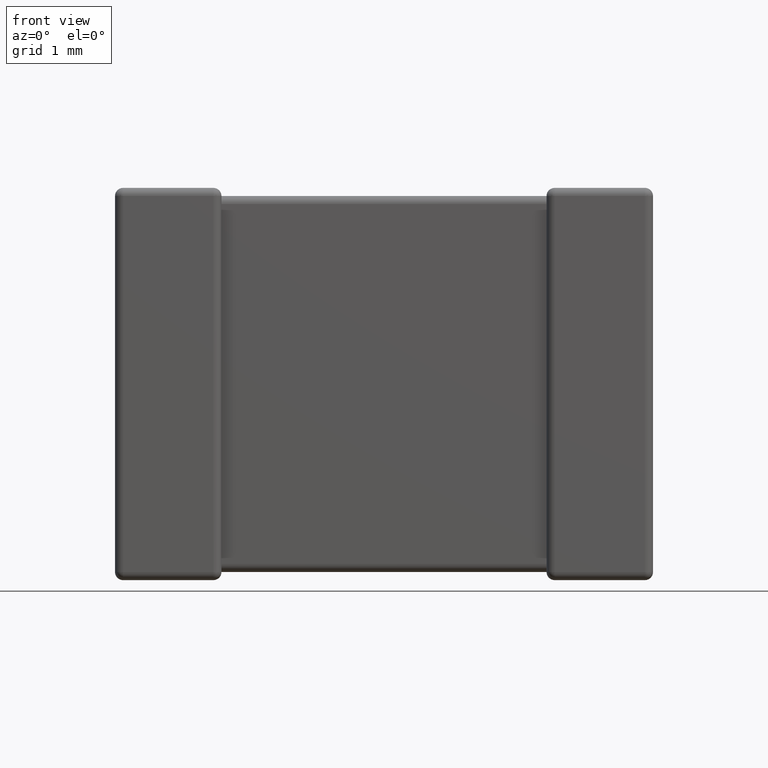
[diagram: clean part render]
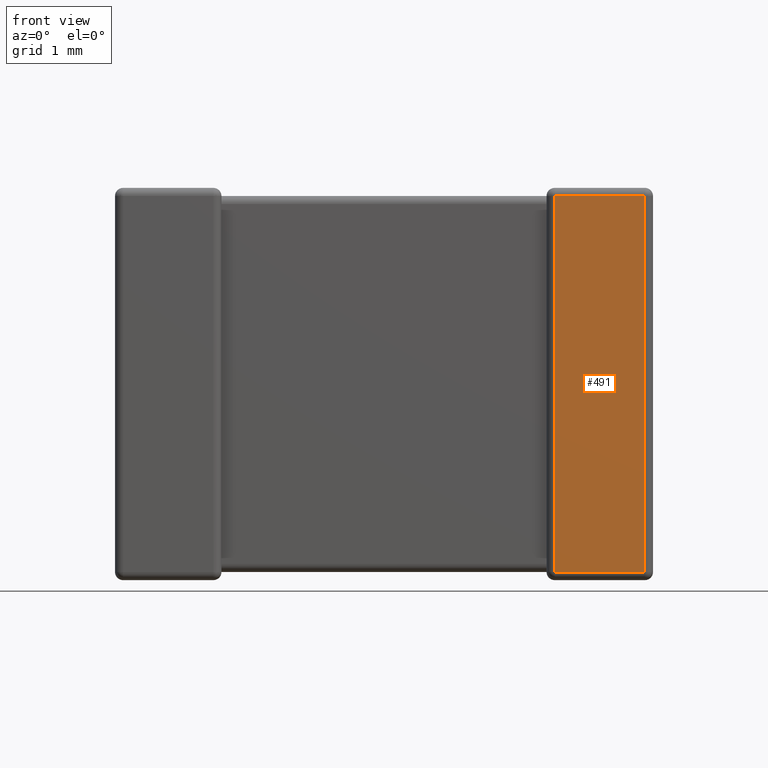
[diagram: same view with one face highlighted and labeled with its STEP entity id]
A machine part, front view. The second image highlights one B-rep face of the part: STEP entity #491.
In plain terms, the highlighted planar face has unit normal (-0, 1, 0).
Its self-contained STEP definition (entity closure, byte-faithful):
#154 = VECTOR ( 'NONE', #3410, 1000.000000000000000 ) ;
#443 = CARTESIAN_POINT ( 'NONE',  ( 3.922799999999999621, 0.000000000000000000, -0.07280000000000000360 ) ) ;
#491 = ADVANCED_FACE ( 'NONE', ( #4095 ), #2328, .F. ) ;
#596 = CARTESIAN_POINT ( 'NONE',  ( 4.727199999999999847, 0.000000000000000000, -3.427200000000000024 ) ) ;
#881 = ORIENTED_EDGE ( 'NONE', *, *, #2938, .T. ) ;
#1214 = CARTESIAN_POINT ( 'NONE',  ( 4.727199999999999847, 0.000000000000000000, -0.07280000000000000360 ) ) ;
#1438 = VECTOR ( 'NONE', #4347, 1000.000000000000000 ) ;
#1847 = LINE ( 'NONE', #2202, #3058 ) ;
#1907 = DIRECTION ( 'NONE',  ( -0.000000000000000000, -0.000000000000000000, 1.000000000000000000 ) ) ;
#1916 = DIRECTION ( 'NONE',  ( 0.000000000000000000, -0.000000000000000000, 1.000000000000000000 ) ) ;
#2037 = VERTEX_POINT ( 'NONE', #2409 ) ;
#2082 = VECTOR ( 'NONE', #1907, 1000.000000000000000 ) ;
#2200 = ORIENTED_EDGE ( 'NONE', *, *, #4464, .T. ) ;
#2202 = CARTESIAN_POINT ( 'NONE',  ( 4.799999999999999822, 0.000000000000000000, -3.427200000000000024 ) ) ;
#2328 = PLANE ( 'NONE',  #4193 ) ;
#2409 = CARTESIAN_POINT ( 'NONE',  ( 3.922799999999999621, 0.000000000000000000, -3.427200000000000024 ) ) ;
#2473 = EDGE_LOOP ( 'NONE', ( #3890, #881, #3039, #2200 ) ) ;
#2610 = CARTESIAN_POINT ( 'NONE',  ( 4.799999999999999822, 0.000000000000000000, 0.000000000000000000 ) ) ;
#2649 = DIRECTION ( 'NONE',  ( -0.000000000000000000, 1.000000000000000000, 0.000000000000000000 ) ) ;
#2697 = LINE ( 'NONE', #3678, #2082 ) ;
#2796 = VERTEX_POINT ( 'NONE', #1214 ) ;
#2938 = EDGE_CURVE ( 'NONE', #3613, #2037, #3955, .T. ) ;
#2982 = CARTESIAN_POINT ( 'NONE',  ( 4.799999999999999822, 0.000000000000000000, -0.07280000000000000360 ) ) ;
#3039 = ORIENTED_EDGE ( 'NONE', *, *, #4014, .T. ) ;
#3058 = VECTOR ( 'NONE', #3269, 1000.000000000000000 ) ;
#3269 = DIRECTION ( 'NONE',  ( 1.000000000000000000, 0.000000000000000000, -0.000000000000000000 ) ) ;
#3311 = LINE ( 'NONE', #2982, #154 ) ;
#3410 = DIRECTION ( 'NONE',  ( -1.000000000000000000, 0.000000000000000000, 0.000000000000000000 ) ) ;
#3602 = CARTESIAN_POINT ( 'NONE',  ( 3.922799999999999621, 0.000000000000000000, 0.000000000000000000 ) ) ;
#3613 = VERTEX_POINT ( 'NONE', #443 ) ;
#3678 = CARTESIAN_POINT ( 'NONE',  ( 4.727199999999999847, 0.000000000000000000, 0.000000000000000000 ) ) ;
#3890 = ORIENTED_EDGE ( 'NONE', *, *, #4112, .T. ) ;
#3955 = LINE ( 'NONE', #3602, #1438 ) ;
#4014 = EDGE_CURVE ( 'NONE', #2037, #4575, #1847, .T. ) ;
#4095 = FACE_OUTER_BOUND ( 'NONE', #2473, .T. ) ;
#4112 = EDGE_CURVE ( 'NONE', #2796, #3613, #3311, .T. ) ;
#4193 = AXIS2_PLACEMENT_3D ( 'NONE', #2610, #2649, #1916 ) ;
#4347 = DIRECTION ( 'NONE',  ( 0.000000000000000000, 0.000000000000000000, -1.000000000000000000 ) ) ;
#4464 = EDGE_CURVE ( 'NONE', #4575, #2796, #2697, .T. ) ;
#4575 = VERTEX_POINT ( 'NONE', #596 ) ;